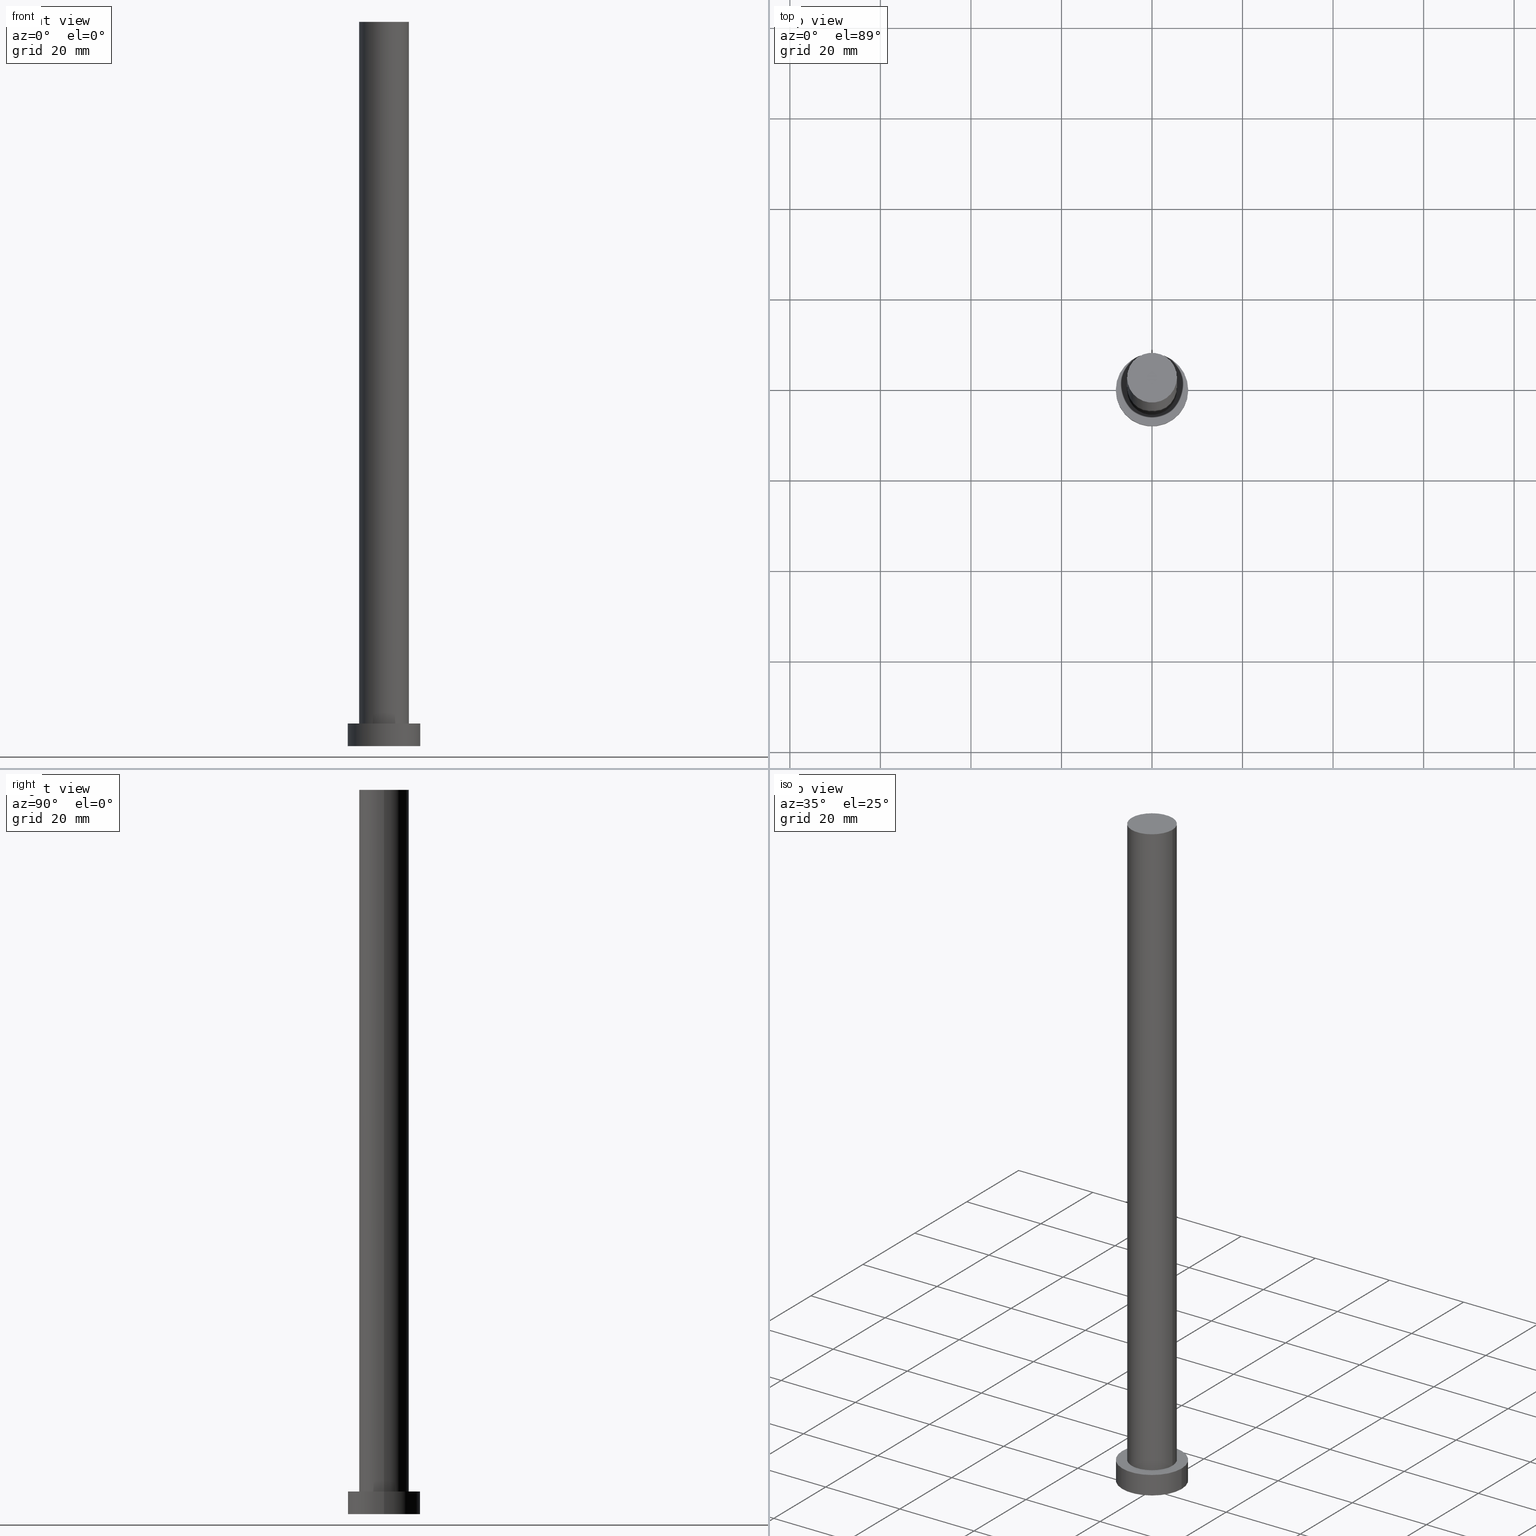
[diagram: canonical four-view strip — front | top / right | iso, engineering-drawing reading convention]
A machine part, canonical four-view strip (front | top / right | iso — engineering-drawing reading convention). The complete STEP part file that produces these views, byte-faithful:
ISO-10303-21;
HEADER;
FILE_DESCRIPTION (( 'STEP AP203' ),
    '1' );
FILE_NAME ('4065.STEP',
    '2023-02-13T11:10:34',
    ( '' ),
    ( '' ),
    'SwSTEP 2.0',
    'SolidWorks 2019',
    '' );
FILE_SCHEMA (( 'CONFIG_CONTROL_DESIGN' ));
ENDSEC;

DATA;
#1 = CC_DESIGN_PERSON_AND_ORGANIZATION_ASSIGNMENT ( #216, #180, ( #135 ) ) ;
#2 = AXIS2_PLACEMENT_3D ( 'NONE', #224, #53, #130 ) ;
#3 = ORGANIZATION ( 'NEUR�EN�', 'NEUR�EN�', '' ) ;
#4 = APPLICATION_PROTOCOL_DEFINITION ( 'international standard', 'config_control_design', 1994, #63 ) ;
#5 = DATE_AND_TIME ( #160, #144 ) ;
#6 = ADVANCED_FACE ( 'NONE', ( #152 ), #51, .F. ) ;
#7 = ORIENTED_EDGE ( 'NONE', *, *, #136, .F. ) ;
#8 = LOCAL_TIME ( 12, 10, 34.00000000000000000, #247 ) ;
#9 = EDGE_LOOP ( 'NONE', ( #145, #140, #250, #125 ) ) ;
#10 = CC_DESIGN_APPROVAL ( #133, ( #228 ) ) ;
#11 = VERTEX_POINT ( 'NONE', #132 ) ;
#12 = CARTESIAN_POINT ( 'NONE',  ( 0.000000000000000000, 0.000000000000000000, 0.000000000000000000 ) ) ;
#13 = COORDINATED_UNIVERSAL_TIME_OFFSET ( 1, 0, .AHEAD. ) ;
#14 = ADVANCED_FACE ( 'NONE', ( #207 ), #15, .T. ) ;
#15 = PLANE ( 'NONE',  #253 ) ;
#16 = CALENDAR_DATE ( 2023, 13, 2 ) ;
#17 = AXIS2_PLACEMENT_3D ( 'NONE', #39, #146, #93 ) ;
#18 = EDGE_LOOP ( 'NONE', ( #48, #142 ) ) ;
#19 = APPROVAL_DATE_TIME ( #245, #133 ) ;
#20 = FACE_BOUND ( 'NONE', #220, .T. ) ;
#21 = APPROVAL_STATUS ( 'not_yet_approved' ) ;
#22 = DIRECTION ( 'NONE',  ( 1.000000000000000000, 0.000000000000000000, 0.000000000000000000 ) ) ;
#23 = ADVANCED_BREP_SHAPE_REPRESENTATION ( '4065', ( #158, #223 ), #38 ) ;
#24 = DIRECTION ( 'NONE',  ( 1.000000000000000000, 0.000000000000000000, -0.000000000000000000 ) ) ;
#25 = CARTESIAN_POINT ( 'NONE',  ( -5.500000000000000000, 0.000000000000000000, 5.000000000000000000 ) ) ;
#26 = EDGE_CURVE ( 'NONE', #182, #123, #74, .T. ) ;
#27 = PERSON_AND_ORGANIZATION ( #164, #3 ) ;
#28 = DESIGN_CONTEXT ( 'detailed design', #63, 'design' ) ;
#29 = APPROVAL_ROLE ( '' ) ;
#30 = EDGE_CURVE ( 'NONE', #67, #11, #124, .T. ) ;
#31 = ORIENTED_EDGE ( 'NONE', *, *, #91, .F. ) ;
#32 = EDGE_CURVE ( 'NONE', #165, #217, #195, .T. ) ;
#33 = ORIENTED_EDGE ( 'NONE', *, *, #167, .T. ) ;
#34 = PLANE ( 'NONE',  #111 ) ;
#35 = ORIENTED_EDGE ( 'NONE', *, *, #157, .T. ) ;
#36 = DIRECTION ( 'NONE',  ( 1.000000000000000000, 0.000000000000000000, 0.000000000000000000 ) ) ;
#37 = DIRECTION ( 'NONE',  ( 0.000000000000000000, 0.000000000000000000, 1.000000000000000000 ) ) ;
#38 =( GEOMETRIC_REPRESENTATION_CONTEXT ( 3 ) GLOBAL_UNCERTAINTY_ASSIGNED_CONTEXT ( ( #118 ) ) GLOBAL_UNIT_ASSIGNED_CONTEXT ( ( #134, #194, #85 ) ) REPRESENTATION_CONTEXT ( 'NONE', 'WORKASPACE' ) );
#39 = CARTESIAN_POINT ( 'NONE',  ( 0.000000000000000000, 0.000000000000000000, 0.000000000000000000 ) ) ;
#40 = CARTESIAN_POINT ( 'NONE',  ( 5.500000000000000000, 6.735557395310442023E-16, 160.0000000000000000 ) ) ;
#41 = DIRECTION ( 'NONE',  ( -0.000000000000000000, -0.000000000000000000, -1.000000000000000000 ) ) ;
#42 = APPROVAL ( #21, 'NEUR�EN�' ) ;
#43 = LINE ( 'NONE', #40, #90 ) ;
#44 = PERSON_AND_ORGANIZATION_ROLE ( 'design_owner' ) ;
#45 = APPLICATION_PROTOCOL_DEFINITION ( 'international standard', 'config_control_design', 1994, #114 ) ;
#46 = PERSON_AND_ORGANIZATION_ROLE ( 'creator' ) ;
#47 = ORIENTED_EDGE ( 'NONE', *, *, #240, .F. ) ;
#48 = ORIENTED_EDGE ( 'NONE', *, *, #84, .T. ) ;
#49 = CC_DESIGN_DATE_AND_TIME_ASSIGNMENT ( #210, #88, ( #234 ) ) ;
#50 = CARTESIAN_POINT ( 'NONE',  ( 8.000000000000000000, 9.797174393178825657E-16, 0.000000000000000000 ) ) ;
#51 = PLANE ( 'NONE',  #183 ) ;
#52 = PERSON_AND_ORGANIZATION_ROLE ( 'classification_officer' ) ;
#53 = DIRECTION ( 'NONE',  ( -0.000000000000000000, -0.000000000000000000, -1.000000000000000000 ) ) ;
#54 = PERSON_AND_ORGANIZATION ( #164, #3 ) ;
#55 = DIRECTION ( 'NONE',  ( 1.000000000000000000, 0.000000000000000000, -0.000000000000000000 ) ) ;
#56 = CLOSED_SHELL ( 'NONE', ( #225, #141, #104, #148, #6, #121, #14 ) ) ;
#57 = DIRECTION ( 'NONE',  ( 1.000000000000000000, 0.000000000000000000, 0.000000000000000000 ) ) ;
#58 = AXIS2_PLACEMENT_3D ( 'NONE', #60, #212, #179 ) ;
#59 = CARTESIAN_POINT ( 'NONE',  ( 0.000000000000000000, 0.000000000000000000, 0.000000000000000000 ) ) ;
#60 = CARTESIAN_POINT ( 'NONE',  ( 0.000000000000000000, 0.000000000000000000, 160.0000000000000000 ) ) ;
#61 = EDGE_CURVE ( 'NONE', #123, #182, #86, .T. ) ;
#62 = LOCAL_TIME ( 12, 10, 34.00000000000000000, #13 ) ;
#63 = APPLICATION_CONTEXT ( 'configuration controlled 3d designs of mechanical parts and assemblies' ) ;
#64 = MECHANICAL_CONTEXT ( 'NONE', #114, 'mechanical' ) ;
#65 = CALENDAR_DATE ( 2023, 13, 2 ) ;
#66 = APPROVAL_STATUS ( 'not_yet_approved' ) ;
#67 = VERTEX_POINT ( 'NONE', #97 ) ;
#68 = CC_DESIGN_PERSON_AND_ORGANIZATION_ASSIGNMENT ( #54, #52, ( #228 ) ) ;
#69 = CIRCLE ( 'NONE', #204, 5.500000000000000000 ) ;
#70 = ORIENTED_EDGE ( 'NONE', *, *, #32, .T. ) ;
#71 = VERTEX_POINT ( 'NONE', #206 ) ;
#72 = SHAPE_DEFINITION_REPRESENTATION ( #94, #23 ) ;
#73 = DIRECTION ( 'NONE',  ( 0.000000000000000000, 0.000000000000000000, 1.000000000000000000 ) ) ;
#74 = CIRCLE ( 'NONE', #81, 8.000000000000000000 ) ;
#75 = DIRECTION ( 'NONE',  ( 1.000000000000000000, 0.000000000000000000, 0.000000000000000000 ) ) ;
#76 = APPROVAL_ROLE ( '' ) ;
#77 = DIRECTION ( 'NONE',  ( -0.000000000000000000, -0.000000000000000000, -1.000000000000000000 ) ) ;
#78 = SECURITY_CLASSIFICATION_LEVEL ( 'unclassified' ) ;
#79 = APPROVAL ( #66, 'NEUR�EN�' ) ;
#80 = EDGE_LOOP ( 'NONE', ( #47, #31, #168, #70 ) ) ;
#81 = AXIS2_PLACEMENT_3D ( 'NONE', #12, #208, #244 ) ;
#82 = COORDINATED_UNIVERSAL_TIME_OFFSET ( 1, 0, .AHEAD. ) ;
#83 = DIRECTION ( 'NONE',  ( 0.000000000000000000, 0.000000000000000000, 1.000000000000000000 ) ) ;
#84 = EDGE_CURVE ( 'NONE', #127, #71, #229, .T. ) ;
#85 =( NAMED_UNIT ( * ) SI_UNIT ( $, .STERADIAN. ) SOLID_ANGLE_UNIT ( ) );
#86 = CIRCLE ( 'NONE', #17, 8.000000000000000000 ) ;
#87 = PERSON_AND_ORGANIZATION ( #164, #3 ) ;
#88 = DATE_TIME_ROLE ( 'creation_date' ) ;
#89 = ORIENTED_EDGE ( 'NONE', *, *, #61, .F. ) ;
#90 = VECTOR ( 'NONE', #189, 1000.000000000000000 ) ;
#91 = EDGE_CURVE ( 'NONE', #11, #67, #100, .T. ) ;
#92 = DIRECTION ( 'NONE',  ( -1.000000000000000000, 0.000000000000000000, 0.000000000000000000 ) ) ;
#93 = DIRECTION ( 'NONE',  ( 1.000000000000000000, 0.000000000000000000, 0.000000000000000000 ) ) ;
#94 = PRODUCT_DEFINITION_SHAPE ( 'NONE', 'NONE',  #234 ) ;
#95 = DATE_TIME_ROLE ( 'classification_date' ) ;
#96 = DIRECTION ( 'NONE',  ( 1.000000000000000000, 0.000000000000000000, 0.000000000000000000 ) ) ;
#97 = CARTESIAN_POINT ( 'NONE',  ( 5.500000000000000000, 6.735557395310442023E-16, 160.0000000000000000 ) ) ;
#98 = CYLINDRICAL_SURFACE ( 'NONE', #2, 5.500000000000000000 ) ;
#99 = PERSON_AND_ORGANIZATION ( #164, #3 ) ;
#100 = CIRCLE ( 'NONE', #106, 5.500000000000000000 ) ;
#101 = DIRECTION ( 'NONE',  ( 1.000000000000000000, 0.000000000000000000, 0.000000000000000000 ) ) ;
#102 = AXIS2_PLACEMENT_3D ( 'NONE', #213, #155, #116 ) ;
#103 = COORDINATED_UNIVERSAL_TIME_OFFSET ( 1, 0, .AHEAD. ) ;
#104 = ADVANCED_FACE ( 'NONE', ( #115 ), #188, .T. ) ;
#105 = ORIENTED_EDGE ( 'NONE', *, *, #240, .T. ) ;
#106 = AXIS2_PLACEMENT_3D ( 'NONE', #107, #37, #75 ) ;
#107 = CARTESIAN_POINT ( 'NONE',  ( 0.000000000000000000, 0.000000000000000000, 160.0000000000000000 ) ) ;
#108 = EDGE_LOOP ( 'NONE', ( #122, #89 ) ) ;
#109 = CARTESIAN_POINT ( 'NONE',  ( 0.000000000000000000, 0.000000000000000000, 0.000000000000000000 ) ) ;
#110 = AXIS2_PLACEMENT_3D ( 'NONE', #222, #126, #92 ) ;
#111 = AXIS2_PLACEMENT_3D ( 'NONE', #172, #83, #24 ) ;
#112 = DIRECTION ( 'NONE',  ( -0.000000000000000000, -0.000000000000000000, -1.000000000000000000 ) ) ;
#113 = APPROVAL_STATUS ( 'not_yet_approved' ) ;
#114 = APPLICATION_CONTEXT ( 'configuration controlled 3d designs of mechanical parts and assemblies' ) ;
#115 = FACE_OUTER_BOUND ( 'NONE', #9, .T. ) ;
#116 = DIRECTION ( 'NONE',  ( 1.000000000000000000, 0.000000000000000000, 0.000000000000000000 ) ) ;
#117 = LOCAL_TIME ( 12, 10, 34.00000000000000000, #82 ) ;
#118 = UNCERTAINTY_MEASURE_WITH_UNIT (LENGTH_MEASURE( 1.000000000000000082E-05 ), #134, 'distance_accuracy_value', 'NONE');
#119 = CYLINDRICAL_SURFACE ( 'NONE', #58, 5.500000000000000000 ) ;
#120 = APPROVAL_DATE_TIME ( #214, #42 ) ;
#121 = ADVANCED_FACE ( 'NONE', ( #221 ), #98, .T. ) ;
#122 = ORIENTED_EDGE ( 'NONE', *, *, #26, .F. ) ;
#123 = VERTEX_POINT ( 'NONE', #50 ) ;
#124 = CIRCLE ( 'NONE', #238, 5.500000000000000000 ) ;
#125 = ORIENTED_EDGE ( 'NONE', *, *, #26, .T. ) ;
#126 = DIRECTION ( 'NONE',  ( -0.000000000000000000, -0.000000000000000000, -1.000000000000000000 ) ) ;
#127 = VERTEX_POINT ( 'NONE', #186 ) ;
#128 = DATE_AND_TIME ( #170, #8 ) ;
#129 = CC_DESIGN_DATE_AND_TIME_ASSIGNMENT ( #128, #95, ( #228 ) ) ;
#130 = DIRECTION ( 'NONE',  ( -1.000000000000000000, 0.000000000000000000, 0.000000000000000000 ) ) ;
#131 = FACE_OUTER_BOUND ( 'NONE', #201, .T. ) ;
#132 = CARTESIAN_POINT ( 'NONE',  ( -5.500000000000000000, 0.000000000000000000, 160.0000000000000000 ) ) ;
#133 = APPROVAL ( #113, 'NEUR�EN�' ) ;
#134 =( LENGTH_UNIT ( ) NAMED_UNIT ( * ) SI_UNIT ( .MILLI., .METRE. ) );
#135 = PRODUCT_DEFINITION_FORMATION_WITH_SPECIFIED_SOURCE ( 'LIBOVOLN�', '', #205, .NOT_KNOWN. ) ;
#136 = EDGE_CURVE ( 'NONE', #127, #182, #171, .T. ) ;
#137 = DIRECTION ( 'NONE',  ( 0.000000000000000000, 0.000000000000000000, 1.000000000000000000 ) ) ;
#138 = PERSON_AND_ORGANIZATION ( #164, #3 ) ;
#139 = AXIS2_PLACEMENT_3D ( 'NONE', #226, #112, #187 ) ;
#140 = ORIENTED_EDGE ( 'NONE', *, *, #84, .F. ) ;
#141 = ADVANCED_FACE ( 'NONE', ( #131 ), #151, .T. ) ;
#142 = ORIENTED_EDGE ( 'NONE', *, *, #192, .T. ) ;
#143 = ORIENTED_EDGE ( 'NONE', *, *, #192, .F. ) ;
#144 = LOCAL_TIME ( 12, 10, 34.00000000000000000, #103 ) ;
#145 = ORIENTED_EDGE ( 'NONE', *, *, #157, .F. ) ;
#146 = DIRECTION ( 'NONE',  ( 0.000000000000000000, 0.000000000000000000, 1.000000000000000000 ) ) ;
#147 = DIRECTION ( 'NONE',  ( 0.000000000000000000, 0.000000000000000000, 1.000000000000000000 ) ) ;
#148 = ADVANCED_FACE ( 'NONE', ( #20, #203 ), #34, .T. ) ;
#149 = CC_DESIGN_APPROVAL ( #42, ( #234 ) ) ;
#150 = DIRECTION ( 'NONE',  ( 0.000000000000000000, 0.000000000000000000, 1.000000000000000000 ) ) ;
#151 = CYLINDRICAL_SURFACE ( 'NONE', #139, 8.000000000000000000 ) ;
#152 = FACE_OUTER_BOUND ( 'NONE', #108, .T. ) ;
#153 = VECTOR ( 'NONE', #41, 1000.000000000000000 ) ;
#154 = CALENDAR_DATE ( 2023, 13, 2 ) ;
#155 = DIRECTION ( 'NONE',  ( 0.000000000000000000, 0.000000000000000000, 1.000000000000000000 ) ) ;
#156 = LINE ( 'NONE', #175, #153 ) ;
#157 = EDGE_CURVE ( 'NONE', #71, #123, #156, .T. ) ;
#158 = MANIFOLD_SOLID_BREP ( 'P�idat vysunut�m3', #56 ) ;
#159 = APPROVAL_ROLE ( '' ) ;
#160 = CALENDAR_DATE ( 2023, 13, 2 ) ;
#161 = ORIENTED_EDGE ( 'NONE', *, *, #30, .T. ) ;
#162 = CIRCLE ( 'NONE', #102, 8.000000000000000000 ) ;
#163 = EDGE_LOOP ( 'NONE', ( #181, #105, #33, #249 ) ) ;
#164 = PERSON ( 'NEUR�EN�', 'NEUR�EN�', 'NEUR�EN�', ('NEUR�EN�'), ('NEUR�EN�'), ('NEUR�EN�') ) ;
#165 = VERTEX_POINT ( 'NONE', #25 ) ;
#166 = DIRECTION ( 'NONE',  ( 0.000000000000000000, 0.000000000000000000, 1.000000000000000000 ) ) ;
#167 = EDGE_CURVE ( 'NONE', #217, #165, #69, .T. ) ;
#168 = ORIENTED_EDGE ( 'NONE', *, *, #211, .T. ) ;
#169 = CARTESIAN_POINT ( 'NONE',  ( 0.000000000000000000, 0.000000000000000000, 5.000000000000000000 ) ) ;
#170 = CALENDAR_DATE ( 2023, 13, 2 ) ;
#171 = LINE ( 'NONE', #184, #190 ) ;
#172 = CARTESIAN_POINT ( 'NONE',  ( 0.000000000000000000, 0.000000000000000000, 5.000000000000000000 ) ) ;
#173 = DIRECTION ( 'NONE',  ( 0.000000000000000000, 0.000000000000000000, 1.000000000000000000 ) ) ;
#174 = APPROVAL_PERSON_ORGANIZATION ( #251, #133, #76 ) ;
#175 = CARTESIAN_POINT ( 'NONE',  ( 8.000000000000000000, 9.797174393178825657E-16, 5.000000000000000000 ) ) ;
#176 = CC_DESIGN_PERSON_AND_ORGANIZATION_ASSIGNMENT ( #138, #46, ( #135 ) ) ;
#177 = CARTESIAN_POINT ( 'NONE',  ( -8.000000000000000000, 0.000000000000000000, 0.000000000000000000 ) ) ;
#178 = APPROVAL_PERSON_ORGANIZATION ( #87, #42, #159 ) ;
#179 = DIRECTION ( 'NONE',  ( -1.000000000000000000, 0.000000000000000000, 0.000000000000000000 ) ) ;
#180 = PERSON_AND_ORGANIZATION_ROLE ( 'design_supplier' ) ;
#181 = ORIENTED_EDGE ( 'NONE', *, *, #30, .F. ) ;
#182 = VERTEX_POINT ( 'NONE', #177 ) ;
#183 = AXIS2_PLACEMENT_3D ( 'NONE', #109, #150, #227 ) ;
#184 = CARTESIAN_POINT ( 'NONE',  ( -8.000000000000000000, 0.000000000000000000, 5.000000000000000000 ) ) ;
#185 = CARTESIAN_POINT ( 'NONE',  ( 0.000000000000000000, 0.000000000000000000, 160.0000000000000000 ) ) ;
#186 = CARTESIAN_POINT ( 'NONE',  ( -8.000000000000000000, 0.000000000000000000, 5.000000000000000000 ) ) ;
#187 = DIRECTION ( 'NONE',  ( -1.000000000000000000, 0.000000000000000000, 0.000000000000000000 ) ) ;
#188 = CYLINDRICAL_SURFACE ( 'NONE', #110, 8.000000000000000000 ) ;
#189 = DIRECTION ( 'NONE',  ( -0.000000000000000000, -0.000000000000000000, -1.000000000000000000 ) ) ;
#190 = VECTOR ( 'NONE', #77, 1000.000000000000000 ) ;
#191 = VECTOR ( 'NONE', #255, 1000.000000000000000 ) ;
#192 = EDGE_CURVE ( 'NONE', #71, #127, #162, .T. ) ;
#193 = CARTESIAN_POINT ( 'NONE',  ( 0.000000000000000000, 0.000000000000000000, 5.000000000000000000 ) ) ;
#194 =( NAMED_UNIT ( * ) PLANE_ANGLE_UNIT ( ) SI_UNIT ( $, .RADIAN. ) );
#195 = CIRCLE ( 'NONE', #202, 5.500000000000000000 ) ;
#196 = CC_DESIGN_APPROVAL ( #79, ( #135 ) ) ;
#197 = APPROVAL_DATE_TIME ( #5, #79 ) ;
#198 = ORIENTED_EDGE ( 'NONE', *, *, #61, .T. ) ;
#199 = APPROVAL_PERSON_ORGANIZATION ( #236, #79, #29 ) ;
#200 = ORIENTED_EDGE ( 'NONE', *, *, #167, .F. ) ;
#201 = EDGE_LOOP ( 'NONE', ( #143, #35, #198, #7 ) ) ;
#202 = AXIS2_PLACEMENT_3D ( 'NONE', #169, #209, #36 ) ;
#203 = FACE_OUTER_BOUND ( 'NONE', #18, .T. ) ;
#204 = AXIS2_PLACEMENT_3D ( 'NONE', #193, #173, #22 ) ;
#205 = PRODUCT ( '4065', '4065', '', ( #64 ) ) ;
#206 = CARTESIAN_POINT ( 'NONE',  ( 8.000000000000000000, 9.797174393178825657E-16, 5.000000000000000000 ) ) ;
#207 = FACE_OUTER_BOUND ( 'NONE', #241, .T. ) ;
#208 = DIRECTION ( 'NONE',  ( 0.000000000000000000, 0.000000000000000000, 1.000000000000000000 ) ) ;
#209 = DIRECTION ( 'NONE',  ( 0.000000000000000000, 0.000000000000000000, 1.000000000000000000 ) ) ;
#210 = DATE_AND_TIME ( #154, #117 ) ;
#211 = EDGE_CURVE ( 'NONE', #11, #165, #231, .T. ) ;
#212 = DIRECTION ( 'NONE',  ( -0.000000000000000000, -0.000000000000000000, -1.000000000000000000 ) ) ;
#213 = CARTESIAN_POINT ( 'NONE',  ( 0.000000000000000000, 0.000000000000000000, 5.000000000000000000 ) ) ;
#214 = DATE_AND_TIME ( #65, #215 ) ;
#215 = LOCAL_TIME ( 12, 10, 34.00000000000000000, #235 ) ;
#216 = PERSON_AND_ORGANIZATION ( #164, #3 ) ;
#217 = VERTEX_POINT ( 'NONE', #233 ) ;
#218 = CC_DESIGN_PERSON_AND_ORGANIZATION_ASSIGNMENT ( #27, #44, ( #205 ) ) ;
#219 = AXIS2_PLACEMENT_3D ( 'NONE', #243, #166, #96 ) ;
#220 = EDGE_LOOP ( 'NONE', ( #239, #200 ) ) ;
#221 = FACE_OUTER_BOUND ( 'NONE', #80, .T. ) ;
#222 = CARTESIAN_POINT ( 'NONE',  ( 0.000000000000000000, 0.000000000000000000, 5.000000000000000000 ) ) ;
#223 = AXIS2_PLACEMENT_3D ( 'NONE', #59, #137, #101 ) ;
#224 = CARTESIAN_POINT ( 'NONE',  ( 0.000000000000000000, 0.000000000000000000, 160.0000000000000000 ) ) ;
#225 = ADVANCED_FACE ( 'NONE', ( #254 ), #119, .T. ) ;
#226 = CARTESIAN_POINT ( 'NONE',  ( 0.000000000000000000, 0.000000000000000000, 5.000000000000000000 ) ) ;
#227 = DIRECTION ( 'NONE',  ( 1.000000000000000000, 0.000000000000000000, -0.000000000000000000 ) ) ;
#228 = SECURITY_CLASSIFICATION ( '', '', #78 ) ;
#229 = CIRCLE ( 'NONE', #219, 8.000000000000000000 ) ;
#230 = CARTESIAN_POINT ( 'NONE',  ( -5.500000000000000000, 0.000000000000000000, 160.0000000000000000 ) ) ;
#231 = LINE ( 'NONE', #230, #191 ) ;
#232 = CC_DESIGN_SECURITY_CLASSIFICATION ( #228, ( #135 ) ) ;
#233 = CARTESIAN_POINT ( 'NONE',  ( 5.500000000000000000, 6.735557395310442023E-16, 5.000000000000000000 ) ) ;
#234 = PRODUCT_DEFINITION ( 'NEZN�M�', '', #135, #28 ) ;
#235 = COORDINATED_UNIVERSAL_TIME_OFFSET ( 1, 0, .AHEAD. ) ;
#236 = PERSON_AND_ORGANIZATION ( #164, #3 ) ;
#237 = ORIENTED_EDGE ( 'NONE', *, *, #91, .T. ) ;
#238 = AXIS2_PLACEMENT_3D ( 'NONE', #185, #147, #57 ) ;
#239 = ORIENTED_EDGE ( 'NONE', *, *, #32, .F. ) ;
#240 = EDGE_CURVE ( 'NONE', #67, #217, #43, .T. ) ;
#241 = EDGE_LOOP ( 'NONE', ( #237, #161 ) ) ;
#242 = PRODUCT_RELATED_PRODUCT_CATEGORY ( 'detail', '', ( #205 ) ) ;
#243 = CARTESIAN_POINT ( 'NONE',  ( 0.000000000000000000, 0.000000000000000000, 5.000000000000000000 ) ) ;
#244 = DIRECTION ( 'NONE',  ( 1.000000000000000000, 0.000000000000000000, 0.000000000000000000 ) ) ;
#245 = DATE_AND_TIME ( #16, #62 ) ;
#246 = CARTESIAN_POINT ( 'NONE',  ( 0.000000000000000000, 0.000000000000000000, 160.0000000000000000 ) ) ;
#247 = COORDINATED_UNIVERSAL_TIME_OFFSET ( 1, 0, .AHEAD. ) ;
#248 = CC_DESIGN_PERSON_AND_ORGANIZATION_ASSIGNMENT ( #99, #252, ( #234 ) ) ;
#249 = ORIENTED_EDGE ( 'NONE', *, *, #211, .F. ) ;
#250 = ORIENTED_EDGE ( 'NONE', *, *, #136, .T. ) ;
#251 = PERSON_AND_ORGANIZATION ( #164, #3 ) ;
#252 = PERSON_AND_ORGANIZATION_ROLE ( 'creator' ) ;
#253 = AXIS2_PLACEMENT_3D ( 'NONE', #246, #73, #55 ) ;
#254 = FACE_OUTER_BOUND ( 'NONE', #163, .T. ) ;
#255 = DIRECTION ( 'NONE',  ( -0.000000000000000000, -0.000000000000000000, -1.000000000000000000 ) ) ;
ENDSEC;
END-ISO-10303-21;
